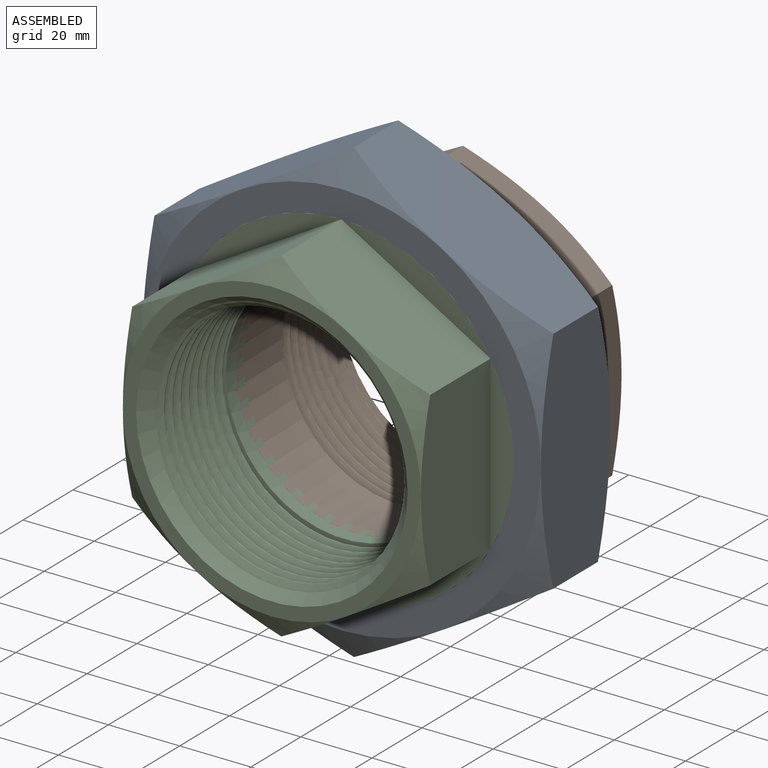
[diagram: assembled view]
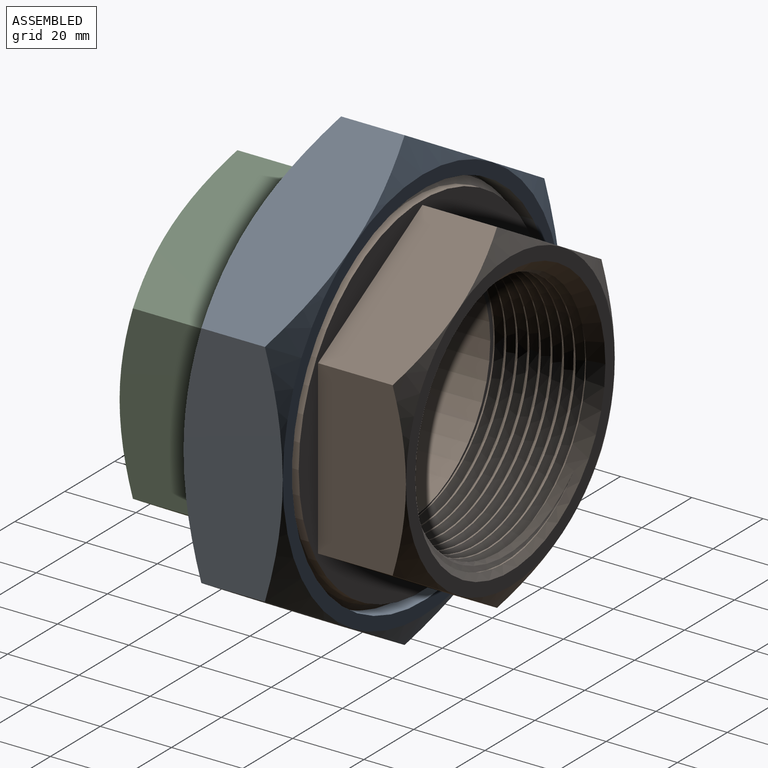
[diagram: assembled view, second angle]
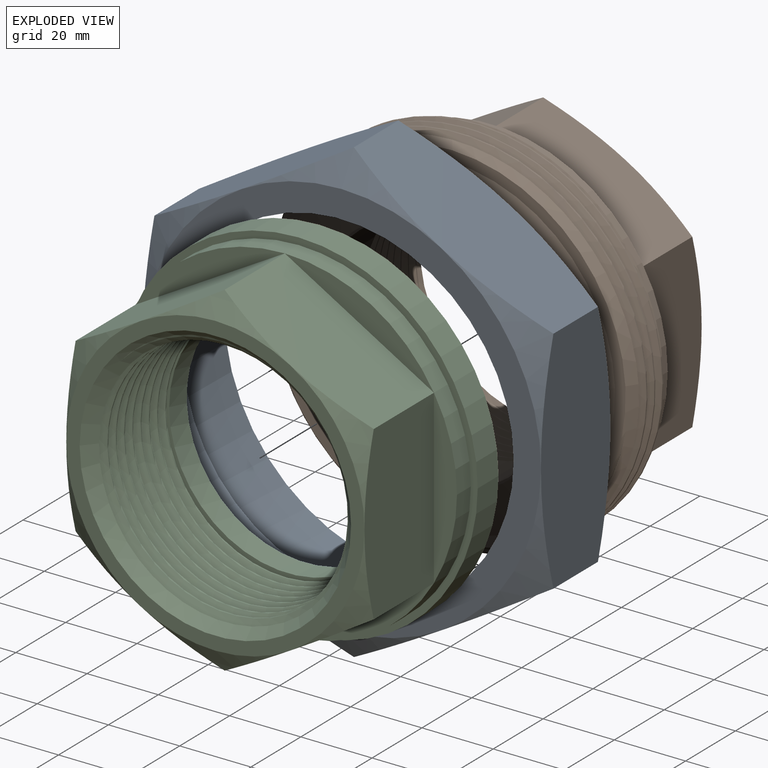
[diagram: exploded view]
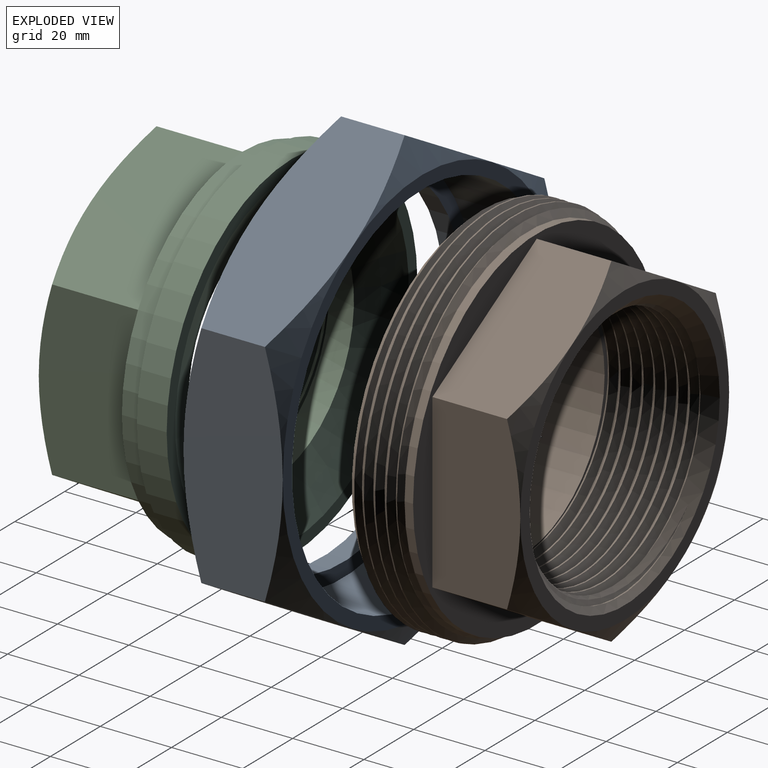
[diagram: exploded view, second angle]
ASSEMBLY  parts=3 mates=2
PART A: 23 faces, bbox 129.3x27.9x129.4 mm
  f0: plane 64.69x27.86mm, normal (1,0,0), area 1579.5mm2, adj f1,f5,f6,f11,f13,f18
  f1: plane 56.03x32.36mm, normal (0.5,0,0.87), area 1579.5mm2, adj f0,f2,f10,f11,f17,f18
  f2: plane 56.03x32.36mm, normal (-0.5,0,0.87), area 1579.5mm2, adj f1,f3,f9,f10,f16,f17
  f3: plane 64.69x27.86mm, normal (-1,0,0), area 1579.5mm2, adj f2,f4,f8,f9,f15,f16
  f4: plane 56.03x32.36mm, normal (-0.5,0,-0.87), area 1579.5mm2, adj f3,f5,f7,f8,f14,f15
  f5: plane 56.03x32.36mm, normal (0.5,0,-0.87), area 1579.5mm2, adj f0,f4,f6,f7,f13,f14
  f6: cone r=56.01mm half-angle=60deg, axis (0,1,0), area 194.7mm2, adj f0,f5,f12
  f7: cone r=56.01mm half-angle=60deg, axis (0,1,0), area 194.7mm2, adj f4,f5,f12
  f8: cone r=56.01mm half-angle=60deg, axis (0,1,0), area 194.7mm2, adj f3,f4,f12
  f9: cone r=56.01mm half-angle=60deg, axis (0,1,0), area 194.7mm2, adj f2,f3,f12
  f10: cone r=56.01mm half-angle=60deg, axis (0,1,0), area 194.7mm2, adj f1,f2,f12
  f11: cone r=56.01mm half-angle=60deg, axis (0,1,0), area 194.7mm2, adj f0,f1,f12
  f12: plane 112.01x112.01mm, normal (0,-1,0), area 2511.7mm2, adj f6,f7,f8,f9,f10,f11,f20
  f13: cone r=56.01mm half-angle=60deg, axis (0,-1,0), area 194.7mm2, adj f0,f5,f19
  f14: cone r=56.01mm half-angle=60deg, axis (0,-1,0), area 194.7mm2, adj f4,f5,f19
  f15: cone r=56.01mm half-angle=60deg, axis (0,-1,0), area 194.7mm2, adj f3,f4,f19
  f16: cone r=56.01mm half-angle=60deg, axis (0,-1,0), area 194.7mm2, adj f2,f3,f19
  f17: cone r=56.01mm half-angle=60deg, axis (0,-1,0), area 194.7mm2, adj f1,f2,f19
  f18: cone r=56.01mm half-angle=60deg, axis (0,-1,0), area 194.7mm2, adj f0,f1,f19
  f19: plane 112.01x112.01mm, normal (0,1,0), area 1260mm2, adj f13,f14,f15,f16,f17,f18,f22
  f20: cylinder r=48.35mm len=96.69mm, axis (0,-1,0), area 1684.6mm2, adj f12,f21
  f21: plane 104.61x104.61mm, normal (0,1,0), area 1251.7mm2, adj f20,f22
  f22: cylinder r=52.3mm len=104.61mm, axis (0,1,0), area 7331.8mm2, adj f19,f21
PART B: 34 faces, bbox 108.6x51.6x124.8 mm
  f0: plane 83.69x83.69mm, normal (0,1,0), area 941mm2, adj f18,f28,f29,f30,f31,f32,f33
  f1: plane 45.85x28.67mm, normal (-0.5,0,0.87), area 1130.6mm2, adj f2,f6,f21,f28,f33
  f2: plane 52.32x28.67mm, normal (-1,0,0), area 1130.6mm2, adj f1,f3,f21,f32,f33
  f3: plane 45.85x28.67mm, normal (-0.5,0,-0.87), area 1130.6mm2, adj f2,f4,f21,f31,f32
  f4: plane 45.85x28.67mm, normal (0.5,0,-0.87), area 1130.6mm2, adj f3,f5,f21,f30,f31
  f5: plane 52.32x28.67mm, normal (1,0,0), area 1130.6mm2, adj f4,f6,f21,f29,f30
  f6: plane 45.85x28.67mm, normal (0.5,0,0.87), area 1130.6mm2, adj f1,f5,f21,f28,f29
  f7: bspline ~120.79x104.61mm, area 2780.6mm2, adj f8,f10,f22,f23
  f8: cylinder r=52.3mm len=104.61mm, axis (0,1,0), area 392.7mm2, adj f7,f9,f22,f23
  f9: bspline ~120.79x104.61mm, area 2779.8mm2, adj f8,f10,f22,f23
  f10: cylinder r=50.24mm len=100.48mm, axis (0,-1,0), area 541.3mm2, adj f7,f9,f22,f23
  f11: bspline ~74.14x74.03mm, area 4281.4mm2, adj f12,f14,f15,f18
  f12: cone r=36.51mm half-angle=1.8deg, axis (0,1,0), area 833.5mm2, adj f11,f13,f15,f16,f18
  f13: bspline ~73.82x73.68mm, area 4183mm2, adj f12,f14,f16,f18
  f14: bspline ~69.44x69.3mm, area 668.3mm2, adj f11,f13,f15,f16,f18
  f15: plane 2.11x1.41mm, normal (1,0,0), area 1.7mm2, adj f11,f12,f14,f16
  f16: plane 72.52x71.52mm, normal (0,1,0), area 409.1mm2, adj f12,f13,f14,f15,f17
  f17: cylinder r=33.21mm len=66.41mm, axis (0,-1,0), area 3855.2mm2, adj f16,f20,f25,f26,f27
  f18: cone r=38.1mm half-angle=45deg, axis (0,1,0), area 880.8mm2, adj f0,f11,f12,f13,f14
  f19: plane 99.52x99.52mm, normal (0,-1,0), area 900.4mm2, adj f20,f22
  f20: cone r=46.79mm half-angle=66.7deg, axis (0,1,0), area 3592.9mm2, adj f17,f19,f25,f26,f27
  f21: plane 99.21x99.21mm, normal (0,1,0), area 1664.9mm2, adj f1,f2,f3,f4,f5,f6,f24
  f22: cone r=53.07mm half-angle=45deg, axis (0,1,0), area 680.5mm2, adj f7,f8,f9,f10,f19
  f23: cone r=49.61mm half-angle=45deg, axis (0,-1,0), area 748.6mm2, adj f7,f8,f9,f10,f24
  f24: cylinder r=49.61mm len=99.21mm, axis (0,-1,0), area 742.2mm2, adj f21,f23
  f25: plane 2.32x0.3mm, normal (0,0,-1), area 0.3mm2, adj f17,f20,f27
  f26: plane 2.32x0.3mm, normal (0,0,-1), area 0.3mm2, adj f17,f20,f27
  f27: plane 67.59x66.13mm, normal (0,-1,0), area 113.8mm2, adj f17,f20,f25,f26
  f28: cone r=41.85mm half-angle=60deg, axis (0,-1,0), area 172.2mm2, adj f0,f1,f6
  f29: cone r=41.85mm half-angle=60deg, axis (0,-1,0), area 172.2mm2, adj f0,f5,f6
  f30: cone r=41.85mm half-angle=60deg, axis (0,-1,0), area 172.2mm2, adj f0,f4,f5
  f31: cone r=41.85mm half-angle=60deg, axis (0,-1,0), area 172.2mm2, adj f0,f3,f4
  f32: cone r=41.85mm half-angle=60deg, axis (0,-1,0), area 172.2mm2, adj f0,f2,f3
  f33: cone r=41.85mm half-angle=60deg, axis (0,-1,0), area 172.2mm2, adj f0,f1,f2
PART C: 32 faces, bbox 104.5x45.8x104.5 mm
  f0: plane 83.69x83.69mm, normal (0,-1,0), area 941mm2, adj f9,f26,f27,f28,f29,f30,f31
  f1: plane 52.32x31.85mm, normal (-1,0,0), area 1284mm2, adj f2,f6,f22,f27,f31
  f2: plane 45.85x31.84mm, normal (-0.5,0,-0.87), area 1284mm2, adj f1,f3,f23,f30,f31
  f3: plane 45.85x31.85mm, normal (0.5,0,-0.87), area 1284mm2, adj f2,f4,f24,f29,f30
  f4: plane 52.32x31.85mm, normal (1,0,0), area 1284mm2, adj f3,f5,f25,f28,f29
  f5: plane 45.85x31.84mm, normal (0.5,0,0.87), area 1284mm2, adj f4,f6,f20,f26,f28
  f6: plane 45.85x31.85mm, normal (-0.5,0,0.87), area 1284mm2, adj f1,f5,f21,f26,f27
  f7: cylinder r=48.32mm len=96.64mm, axis (0,1,0), area 1691.4mm2, adj f16,f20,f21,f22,f23,f24,f25
  f8: plane 72.52x71.52mm, normal (0,-1,0), area 409.1mm2, adj f10,f11,f12,f13,f15
  f9: cone r=38.1mm half-angle=45deg, axis (0,-1,0), area 880.8mm2, adj f0,f11,f12,f13,f14
  f10: plane 2.11x1.41mm, normal (1,0,0), area 1.7mm2, adj f8,f11,f13,f14
  f11: cone r=36.51mm half-angle=1.8deg, axis (0,-1,0), area 833.5mm2, adj f8,f9,f10,f12,f14
  f12: bspline ~73.82x73.68mm, area 4242.8mm2, adj f8,f9,f11,f13
  f13: bspline ~69.44x69.3mm, area 668.3mm2, adj f8,f9,f10,f12,f14
  f14: bspline ~74.14x74.03mm, area 4281.4mm2, adj f9,f10,f11,f13
  f15: cylinder r=33.21mm len=66.41mm, axis (0,-1,0), area 1469mm2, adj f8,f19
  f16: plane 100.48x100.48mm, normal (0,-1,0), area 595mm2, adj f7,f18
  f17: plane 100.48x100.48mm, normal (0,1,0), area 1050.4mm2, adj f18,f19
  f18: cylinder r=50.24mm len=100.48mm, axis (0,1,0), area 2638mm2, adj f16,f17
  f19: cone r=46.8mm half-angle=66.7deg, axis (0,1,0), area 3718.5mm2, adj f15,f17
  f20: plane 41.85x24.16mm, normal (0,-1,0), area 211.5mm2, adj f5,f7
  f21: plane 41.85x24.16mm, normal (0,-1,0), area 211.5mm2, adj f6,f7
  f22: plane 48.32x6.47mm, normal (0,-1,0), area 211.5mm2, adj f1,f7
  f23: plane 41.85x24.16mm, normal (0,-1,0), area 211.5mm2, adj f2,f7
  f24: plane 41.85x24.16mm, normal (0,-1,0), area 211.5mm2, adj f3,f7
  f25: plane 48.32x6.47mm, normal (0,-1,0), area 211.5mm2, adj f4,f7
  f26: cone r=41.85mm half-angle=60deg, axis (0,1,0), area 172.2mm2, adj f0,f5,f6
  f27: cone r=41.85mm half-angle=60deg, axis (0,1,0), area 172.2mm2, adj f0,f1,f6
  f28: cone r=41.85mm half-angle=60deg, axis (0,1,0), area 172.2mm2, adj f0,f4,f5
  f29: cone r=41.85mm half-angle=60deg, axis (0,1,0), area 172.2mm2, adj f0,f3,f4
  f30: cone r=41.85mm half-angle=60deg, axis (0,1,0), area 172.2mm2, adj f0,f2,f3
  f31: cone r=41.85mm half-angle=60deg, axis (0,1,0), area 172.2mm2, adj f0,f1,f2
PLACE A t=(-71.41,-33.49,11.61)mm
PLACE B t=(-71.41,-36.66,11.61)mm
PLACE C t=(-71.41,-33.49,11.61)mm
MATE fastened B.f17 <-> A.f6  axis (0,1,0) through (-71.41,-19.56,11.61)mm
MATE fastened C.f7 <-> A.f6  axis (0,-1,0) through (-71.41,-47.41,11.61)mm
